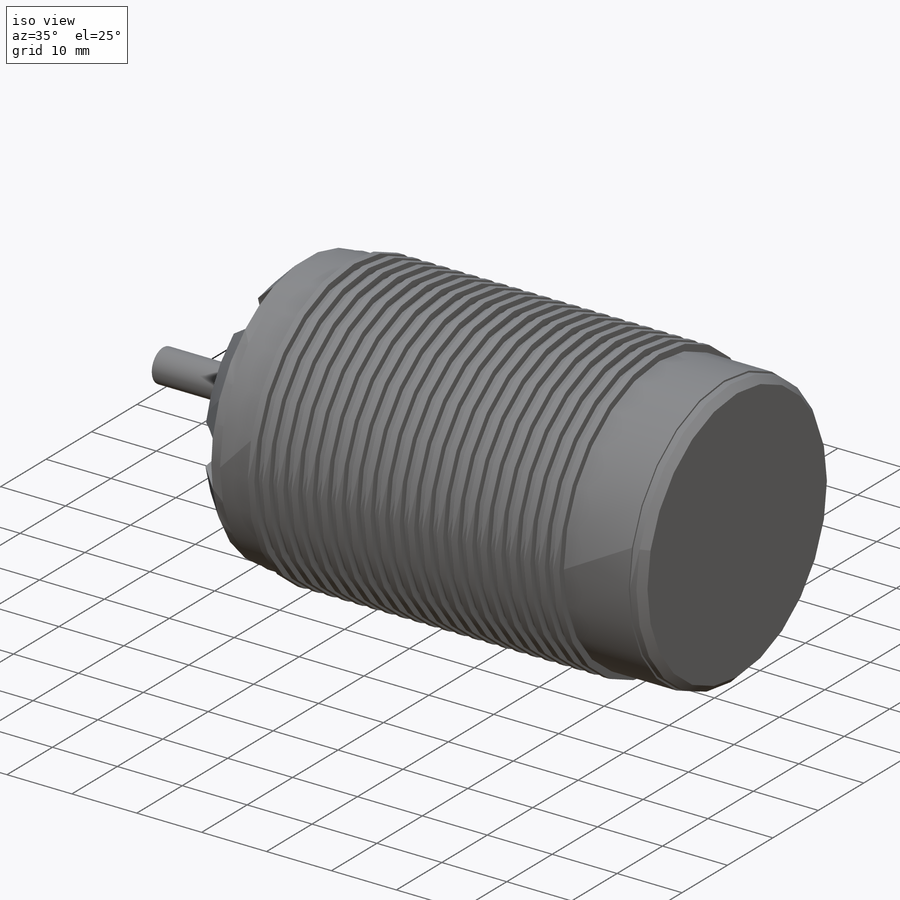
[diagram: iso view]
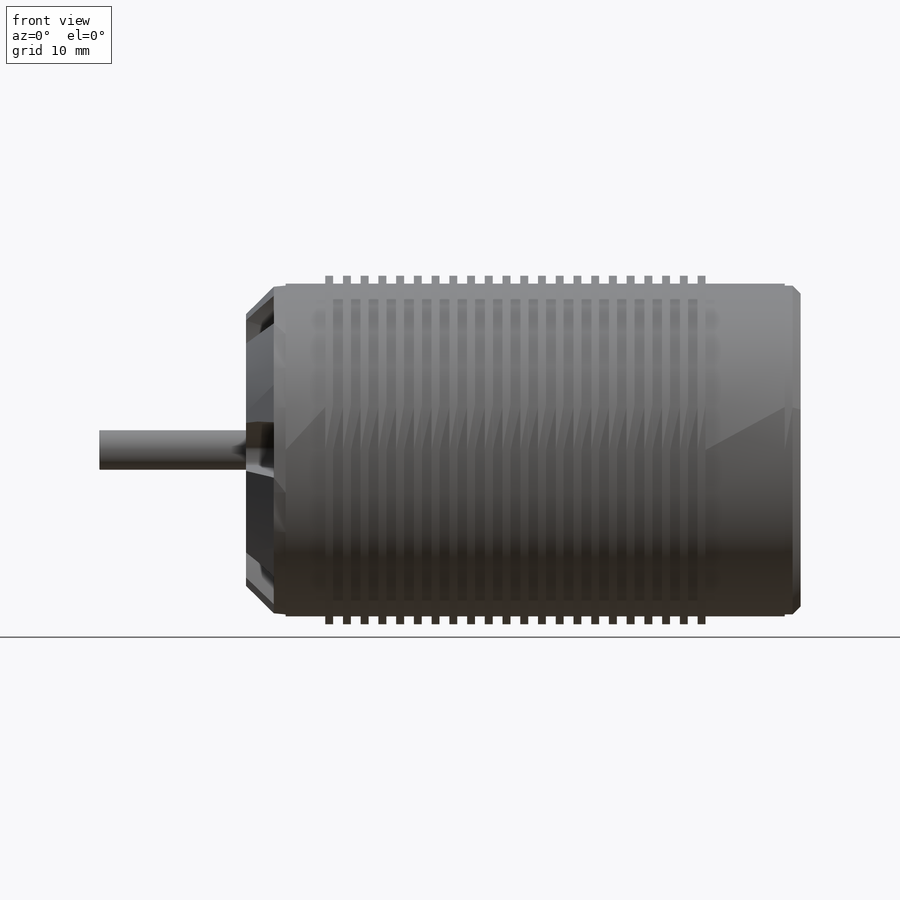
[diagram: front view]
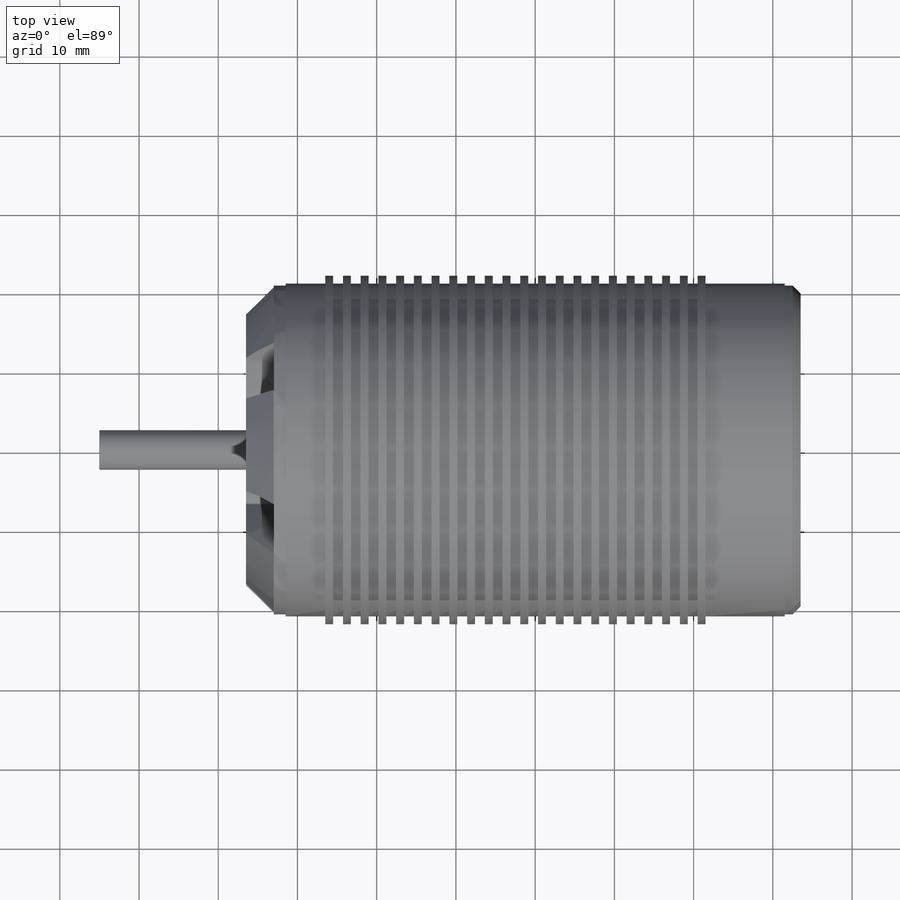
[diagram: top view]
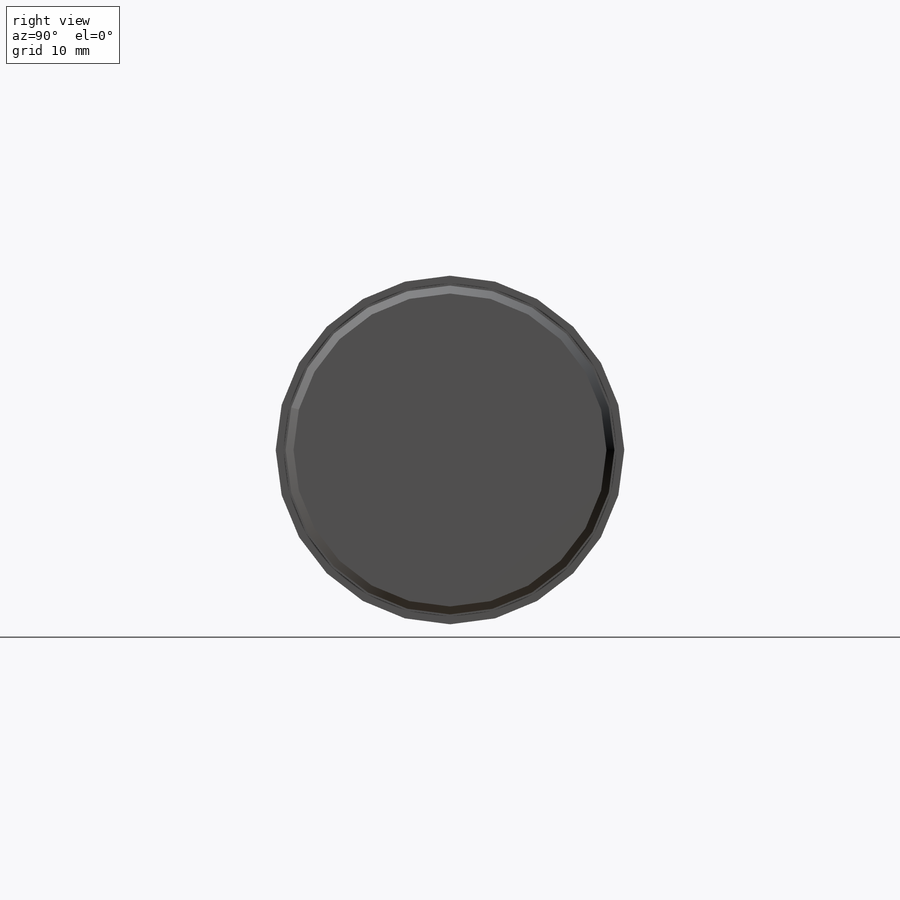
[diagram: right view]
SOLIDWORKS PART (.sldprt)
format: sldprt  version: not decoded by parser v0  size: 1,159,168 bytes
history: native  units: mm
features: sketch x12, thread x6, chamfer x5, extrude x3, cut_extrude x2, hole x2, fillet x2, material x1, revolve x1, plane x1 (+13 scaffold rows collapsed)
feature tree (48):
  scaffold x13  (default folders/planes/origin — collapsed)
  material  "Material <not specified>"
  sketch  "Sketch2"  dims[c1.D1=5.0mm c1.D2=68.0mm c1.D3=42.0mm c1.D4=1.0mm c1.D5=1.0mm c1.D7=6.0mm c2.D2=3.0mm c2.D7=5.0mm c3.D2=3.0mm c3.D7=2.0mm c3.D8=10.0mm c4.D2=63.0mm c4.D7=42.0mm c4.D3=21.0mm c4.D6=22.0]
  revolve  "Revolve1"  Angle=360deg
  sketch  "Sketch3"  dims[D1=~19.00295mm]
  extrude  "Boss-Extrude1"  Depth=2mm
  sketch  "Sketch4"  dims[D1=~11.348943mm]
  extrude  "Boss-Extrude2"  Depth=5mm
  chamfer  "Chamfer1"  Distance=3.5mm Angle=45deg
  chamfer  "Chamfer2"  Distance=1mm Angle=45deg
  plane  "Plane1"
  sketch  "Sketch6"  dims[c1.D4=41.5mm c1.D5=~20.48641mm c1.D6=~4.989199mm c1.D1=~17.407443mm c2.D1=60.0deg c2.D2=20.75mm c3.D2=60.0deg c3.D3=3.5mm c3.D4=~1.51359mm c3.D5=3.5mm c3.D6=2.0mm]
  cut_extrude  "Cut-Extrude1"  Depth=22mm
  sketch  "Sketch5"  dims[D1=~1.836001mm]
  extrude  "Boss-Extrude3"  Depth=22mm
  sketch  "Sketch7"  dims[c1.D1=~28.212487mm c2.D1=30.0deg c2.D2=~14.106243mm c3.D2=120.0deg c3.D3=~23.860835mm c4.D3=60.0deg c4.D4=~33.100685mm c5.D4=30.0deg c5.D5=25.0mm]
  hole  "M3x0.5 Tapped Hole1"  Diameter=2.5mm Depth=7.5mm
  sketch  "Sketch9"
  sketch  "Sketch10"  dims[hole-wizard template sketch: 50 standard entries collapsed; hole parameters above]
  thread  "Hole Thread1"  Diameter=6mm  [1 undecoded]
  thread  "Hole Thread2"  Diameter=6mm  [1 undecoded]
  thread  "Hole Thread3"  Diameter=6mm  [1 undecoded]
  thread  "Hole Thread4"  Diameter=6mm  [1 undecoded]
  sketch  "Sketch11"
  hole  "M4x0.7 Tapped Hole1"  Diameter=3.3mm Depth=10.1mm
  sketch  "Sketch13"
  sketch  "Sketch12"  dims[hole-wizard template sketch: 50 standard entries collapsed; hole parameters above]
  thread  "Hole Thread5"  Diameter=8mm  [1 undecoded]
  thread  "Hole Thread6"  Diameter=8mm  [1 undecoded]
  chamfer  "Chamfer3"  Distance=0.25mm Angle=45deg
  chamfer  "Chamfer4"  Distance=0.5mm Angle=45deg
  chamfer  "Chamfer5"  Distance=0.25mm Angle=45deg
  sketch  "Sketch14"  dims[D1=4.0mm]
  cut_extrude  "Cut-Extrude2"  Depth=16mm
  fillet  "Fillet1"  Radius=0.1mm
  fillet  "Fillet2"  Radius=0.1mm
decode coverage: 30 of 33 modeling features carry decoded parameters
note: ~ marks probable driven/reference dimensions
note: 6 parameter values undecoded
note: suppression state not decoded; provenance and decode notes live in map.json
